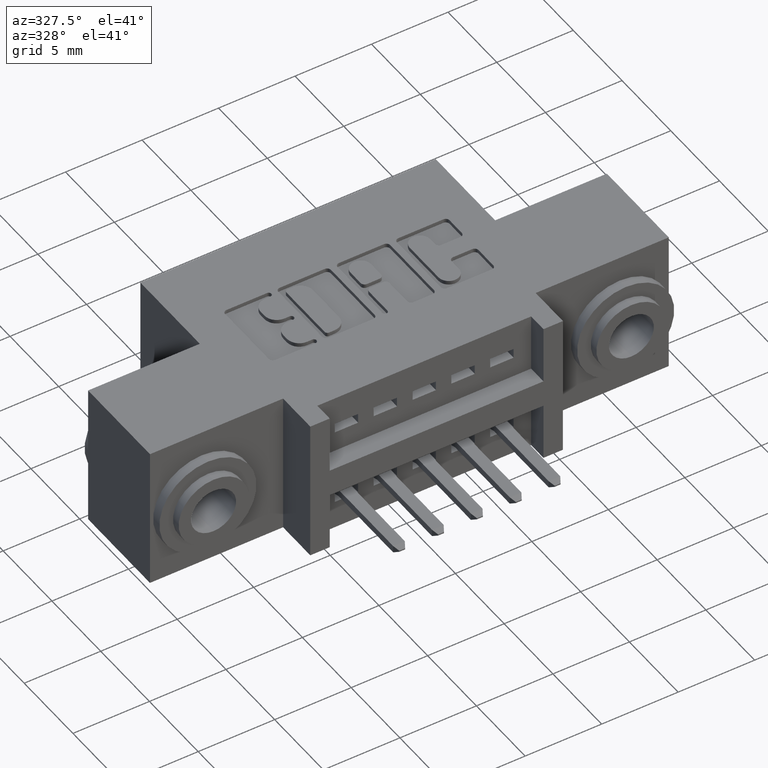
[diagram: clean part render]
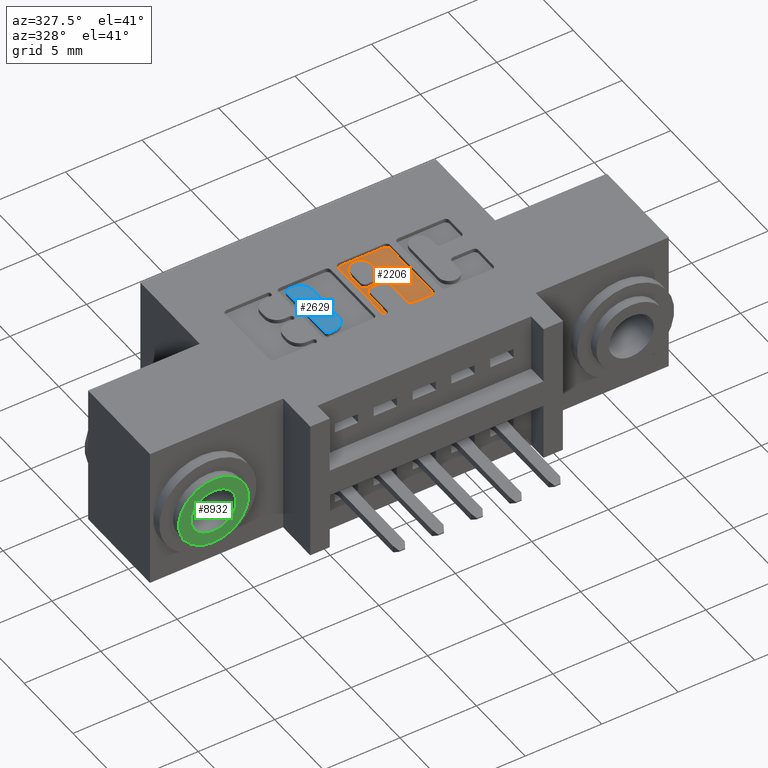
[diagram: same view with three faces highlighted in distinct colors, each labeled with its STEP entity id]
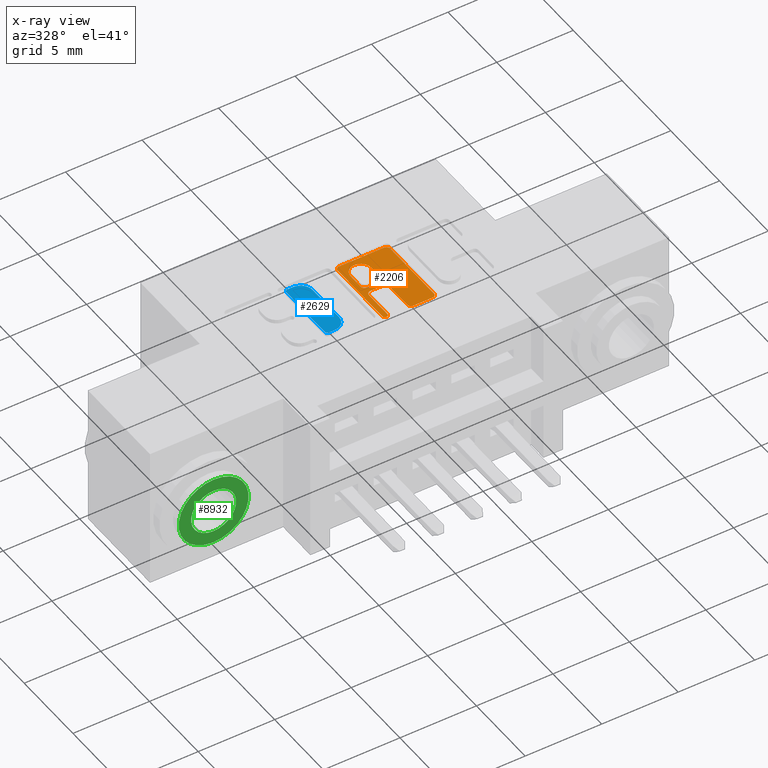
[diagram: x-ray of the same camera — body ghosted, the three highlighted faces saturated]
A machine part, auxiliary view with three faces highlighted in distinct colors.
The next image is the same camera in x-ray (body ghosted, the three faces saturated) — at least one of them is partly hidden behind the body in this view.
Their STEP definitions:

[orange] entity #2206 — the highlighted planar face has unit normal (0, 0, 1).
#54 = VERTEX_POINT ( 'NONE', #7358 ) ;
#79 = CARTESIAN_POINT ( 'NONE',  ( 0.8017292900370103200, 0.2268432979619840200, -0.01000000000000000000 ) ) ;
#188 = VERTEX_POINT ( 'NONE', #8241 ) ;
#221 = DIRECTION ( 'NONE',  ( -0.0000000000000000000, 0.0000000000000000000, 1.000000000000000000 ) ) ;
#294 = ORIENTED_EDGE ( 'NONE', *, *, #7517, .F. ) ;
#339 = AXIS2_PLACEMENT_3D ( 'NONE', #410, #7967, #8633 ) ;
#410 = CARTESIAN_POINT ( 'NONE',  ( 0.6996463199174500800, 0.3416866393464881300, -0.01000000000000000000 ) ) ;
#426 = DIRECTION ( 'NONE',  ( -0.0000000000000000000, 0.0000000000000000000, 1.000000000000000000 ) ) ;
#532 = DIRECTION ( 'NONE',  ( -1.000000000000000000, -4.153954829891640800E-015, 0.0000000000000000000 ) ) ;
#572 = CARTESIAN_POINT ( 'NONE',  ( 0.6898306497136467200, 0.0000000000000000000, -0.01000000000000000000 ) ) ;
#600 = CARTESIAN_POINT ( 'NONE',  ( -1.378577015171062900E-015, 0.3318709691426818300, -0.01000000000000000000 ) ) ;
#611 = EDGE_CURVE ( 'NONE', #188, #9408, #5250, .T. ) ;
#701 = CARTESIAN_POINT ( 'NONE',  ( 0.6829596805709867700, 0.2337142671046473500, -0.01000000000000000000 ) ) ;
#727 = DIRECTION ( 'NONE',  ( -0.0000000000000000000, 0.0000000000000000000, 1.000000000000000000 ) ) ;
#729 = EDGE_CURVE ( 'NONE', #9633, #3139, #8515, .T. ) ;
#811 = VERTEX_POINT ( 'NONE', #79 ) ;
#820 = VERTEX_POINT ( 'NONE', #3150 ) ;
#885 = CIRCLE ( 'NONE', #2667, 0.009815670203795690700 ) ;
#891 = CARTESIAN_POINT ( 'NONE',  ( 0.7521601555077878100, 0.2366589681657872400, -0.01000000000000000000 ) ) ;
#986 = CARTESIAN_POINT ( 'NONE',  ( 0.8115449602408065800, 0.2366589681657802800, -0.01000000000000000000 ) ) ;
#1049 = EDGE_LOOP ( 'NONE', ( #5435, #4120, #294, #5138, #1840, #2706, #7640, #4723, #2866, #4612, #3831, #6120, #7530, #2676 ) ) ;
#1295 = CIRCLE ( 'NONE', #1600, 0.009815670203796920600 ) ;
#1346 = ORIENTED_EDGE ( 'NONE', *, *, #6535, .F. ) ;
#1479 = EDGE_CURVE ( 'NONE', #5377, #8797, #885, .T. ) ;
#1518 = CARTESIAN_POINT ( 'NONE',  ( 0.6859043816321273000, 0.4133410318342095000, -0.01000000000000000000 ) ) ;
#1600 = AXIS2_PLACEMENT_3D ( 'NONE', #2447, #4638, #3823 ) ;
#1621 = CARTESIAN_POINT ( 'NONE',  ( 0.6760887114283307100, 0.2337142671046473500, -0.01000000000000000000 ) ) ;
#1695 = VERTEX_POINT ( 'NONE', #2271 ) ;
#1738 = VECTOR ( 'NONE', #4348, 39.37007874015748100 ) ;
#1806 = DIRECTION ( 'NONE',  ( -0.0000000000000000000, 0.0000000000000000000, 1.000000000000000000 ) ) ;
#1830 = CARTESIAN_POINT ( 'NONE',  ( 0.0000000000000000000, 0.4231567020380060400, -0.01000000000000000000 ) ) ;
#1840 = ORIENTED_EDGE ( 'NONE', *, *, #7257, .F. ) ;
#1869 = DIRECTION ( 'NONE',  ( 0.0000000000000000000, -1.000000000000000000, 0.0000000000000000000 ) ) ;
#1891 = VECTOR ( 'NONE', #532, 39.37007874015748100 ) ;
#1908 = CIRCLE ( 'NONE', #8511, 0.02625691779516779700 ) ;
#2049 = AXIS2_PLACEMENT_3D ( 'NONE', #701, #6654, #4389 ) ;
#2093 = ORIENTED_EDGE ( 'NONE', *, *, #4588, .T. ) ;
#2122 = LINE ( 'NONE', #600, #1891 ) ;
#2176 = CARTESIAN_POINT ( 'NONE',  ( 0.7521601555077854800, 0.2268432979619840200, -0.01000000000000000000 ) ) ;
#2197 = VERTEX_POINT ( 'NONE', #2176 ) ;
#2206 = ADVANCED_FACE ( 'NONE', ( #5647, #5072 ), #8058, .T. ) ;
#2270 = DIRECTION ( 'NONE',  ( 1.000000000000000000, 0.0000000000000000000, 0.0000000000000000000 ) ) ;
#2271 = CARTESIAN_POINT ( 'NONE',  ( 0.6996463199174500800, 0.3318709691426847700, -0.01000000000000000000 ) ) ;
#2379 = CARTESIAN_POINT ( 'NONE',  ( 0.6760887114283307100, 0.0000000000000000000, -0.01000000000000000000 ) ) ;
#2447 = CARTESIAN_POINT ( 'NONE',  ( 0.7325288151001876400, 0.3083133606535521900, -0.01000000000000000000 ) ) ;
#2492 = DIRECTION ( 'NONE',  ( 0.0000000000000000000, -1.000000000000000000, 0.0000000000000000000 ) ) ;
#2667 = AXIS2_PLACEMENT_3D ( 'NONE', #4760, #1806, #7174 ) ;
#2676 = ORIENTED_EDGE ( 'NONE', *, *, #1479, .T. ) ;
#2706 = ORIENTED_EDGE ( 'NONE', *, *, #729, .F. ) ;
#2709 = CIRCLE ( 'NONE', #2049, 0.006870969142657995000 ) ;
#2729 = VERTEX_POINT ( 'NONE', #8960 ) ;
#2787 = LINE ( 'NONE', #3633, #1738 ) ;
#2796 = CARTESIAN_POINT ( 'NONE',  ( 0.6996463199174500800, 0.3181290308573480100, -0.01000000000000000000 ) ) ;
#2815 = DIRECTION ( 'NONE',  ( 0.0000000000000000000, 1.000000000000000000, -0.0000000000000000000 ) ) ;
#2866 = ORIENTED_EDGE ( 'NONE', *, *, #4436, .F. ) ;
#2914 = AXIS2_PLACEMENT_3D ( 'NONE', #7857, #426, #5616 ) ;
#2917 = CARTESIAN_POINT ( 'NONE',  ( 0.0000000000000000000, 0.0000000000000000000, -0.01000000000000000000 ) ) ;
#2963 = EDGE_CURVE ( 'NONE', #5377, #6946, #9459, .T. ) ;
#2966 = VERTEX_POINT ( 'NONE', #1621 ) ;
#3025 = CIRCLE ( 'NONE', #5868, 0.009815670203796511200 ) ;
#3094 = DIRECTION ( 'NONE',  ( 1.000000000000000000, 0.0000000000000000000, 0.0000000000000000000 ) ) ;
#3139 = VERTEX_POINT ( 'NONE', #4966 ) ;
#3150 = CARTESIAN_POINT ( 'NONE',  ( 0.7325288151001879700, 0.3181290308573491700, -0.01000000000000000000 ) ) ;
#3312 = EDGE_CURVE ( 'NONE', #811, #2197, #5277, .T. ) ;
#3417 = LINE ( 'NONE', #2379, #5722 ) ;
#3602 = ORIENTED_EDGE ( 'NONE', *, *, #5633, .T. ) ;
#3633 = CARTESIAN_POINT ( 'NONE',  ( -1.123269580619666900E-014, 0.3181290308573233000, -0.01000000000000000000 ) ) ;
#3760 = VERTEX_POINT ( 'NONE', #6062 ) ;
#3820 = DIRECTION ( 'NONE',  ( 1.000000000000000000, 0.0000000000000000000, 0.0000000000000000000 ) ) ;
#3823 = DIRECTION ( 'NONE',  ( 1.000000000000000000, 0.0000000000000000000, 0.0000000000000000000 ) ) ;
#3831 = ORIENTED_EDGE ( 'NONE', *, *, #3312, .F. ) ;
#3935 = VECTOR ( 'NONE', #6067, 39.37007874015748100 ) ;
#3979 = CIRCLE ( 'NONE', #7625, 0.009815670203803340800 ) ;
#4005 = CARTESIAN_POINT ( 'NONE',  ( 0.8017292900370137600, 0.4231567020380060400, -0.01000000000000000000 ) ) ;
#4060 = LINE ( 'NONE', #1830, #4163 ) ;
#4120 = ORIENTED_EDGE ( 'NONE', *, *, #6773, .T. ) ;
#4163 = VECTOR ( 'NONE', #6988, 39.37007874015748100 ) ;
#4214 = AXIS2_PLACEMENT_3D ( 'NONE', #4418, #8189, #2270 ) ;
#4341 = EDGE_CURVE ( 'NONE', #188, #1695, #4699, .T. ) ;
#4348 = DIRECTION ( 'NONE',  ( -1.000000000000000000, -3.530861605407645300E-014, 0.0000000000000000000 ) ) ;
#4389 = DIRECTION ( 'NONE',  ( 1.000000000000000000, 0.0000000000000000000, 0.0000000000000000000 ) ) ;
#4405 = CIRCLE ( 'NONE', #2914, 0.009815670203796374200 ) ;
#4418 = CARTESIAN_POINT ( 'NONE',  ( 0.8017292900370103200, 0.2366589681657802800, -0.01000000000000000000 ) ) ;
#4436 = EDGE_CURVE ( 'NONE', #6322, #8708, #9372, .T. ) ;
#4469 = VECTOR ( 'NONE', #6534, 39.37007874015748100 ) ;
#4572 = EDGE_CURVE ( 'NONE', #8497, #8797, #4060, .T. ) ;
#4577 = VERTEX_POINT ( 'NONE', #9244 ) ;
#4588 = EDGE_CURVE ( 'NONE', #3760, #4577, #5431, .T. ) ;
#4612 = ORIENTED_EDGE ( 'NONE', *, *, #8691, .T. ) ;
#4638 = DIRECTION ( 'NONE',  ( -0.0000000000000000000, 0.0000000000000000000, 1.000000000000000000 ) ) ;
#4699 = CIRCLE ( 'NONE', #339, 0.009815670203803340800 ) ;
#4723 = ORIENTED_EDGE ( 'NONE', *, *, #8630, .F. ) ;
#4760 = CARTESIAN_POINT ( 'NONE',  ( 0.8017292900370114300, 0.4133410318342097800, -0.01000000000000000000 ) ) ;
#4889 = LINE ( 'NONE', #7999, #8236 ) ;
#4966 = CARTESIAN_POINT ( 'NONE',  ( 0.6898306497136467200, 0.3083133606535449800, -0.01000000000000000000 ) ) ;
#5041 = DIRECTION ( 'NONE',  ( -0.0000000000000000000, 0.0000000000000000000, 1.000000000000000000 ) ) ;
#5072 = FACE_OUTER_BOUND ( 'NONE', #1049, .T. ) ;
#5138 = ORIENTED_EDGE ( 'NONE', *, *, #8176, .T. ) ;
#5233 = VERTEX_POINT ( 'NONE', #8085 ) ;
#5250 = LINE ( 'NONE', #572, #7809 ) ;
#5277 = LINE ( 'NONE', #8104, #4469 ) ;
#5377 = VERTEX_POINT ( 'NONE', #8261 ) ;
#5431 = LINE ( 'NONE', #6294, #7876 ) ;
#5435 = ORIENTED_EDGE ( 'NONE', *, *, #4572, .F. ) ;
#5616 = DIRECTION ( 'NONE',  ( 1.000000000000000000, 0.0000000000000000000, 0.0000000000000000000 ) ) ;
#5633 = EDGE_CURVE ( 'NONE', #54, #1695, #2122, .T. ) ;
#5637 = CARTESIAN_POINT ( 'NONE',  ( 0.7423444853039845600, 0.0000000000000000000, -0.01000000000000000000 ) ) ;
#5647 = FACE_BOUND ( 'NONE', #7435, .T. ) ;
#5660 = DIRECTION ( 'NONE',  ( 0.0000000000000000000, -1.000000000000000000, 0.0000000000000000000 ) ) ;
#5722 = VECTOR ( 'NONE', #7474, 39.37007874015748100 ) ;
#5747 = VECTOR ( 'NONE', #2492, 39.37007874015748100 ) ;
#5776 = DIRECTION ( 'NONE',  ( 1.000000000000000000, 0.0000000000000000000, 0.0000000000000000000 ) ) ;
#5847 = CARTESIAN_POINT ( 'NONE',  ( 0.6996463199174500800, 0.3083133606535449800, -0.01000000000000000000 ) ) ;
#5868 = AXIS2_PLACEMENT_3D ( 'NONE', #1518, #727, #3820 ) ;
#6062 = CARTESIAN_POINT ( 'NONE',  ( 0.7423444853039820000, 0.3826670498449315500, -0.01000000000000000000 ) ) ;
#6067 = DIRECTION ( 'NONE',  ( 0.0000000000000000000, 1.000000000000000000, -0.0000000000000000000 ) ) ;
#6120 = ORIENTED_EDGE ( 'NONE', *, *, #8096, .T. ) ;
#6294 = CARTESIAN_POINT ( 'NONE',  ( 0.7423444853039820000, 0.0000000000000000000, -0.01000000000000000000 ) ) ;
#6322 = VERTEX_POINT ( 'NONE', #6990 ) ;
#6500 = AXIS2_PLACEMENT_3D ( 'NONE', #2917, #8803, #8092 ) ;
#6513 = CARTESIAN_POINT ( 'NONE',  ( 0.6859043816321273000, 0.4231567020380060400, -0.01000000000000000000 ) ) ;
#6534 = DIRECTION ( 'NONE',  ( -1.000000000000000000, 0.0000000000000000000, 0.0000000000000000000 ) ) ;
#6535 = EDGE_CURVE ( 'NONE', #54, #4577, #4405, .T. ) ;
#6610 = AXIS2_PLACEMENT_3D ( 'NONE', #5847, #8093, #8171 ) ;
#6652 = EDGE_CURVE ( 'NONE', #820, #9633, #2787, .T. ) ;
#6654 = DIRECTION ( 'NONE',  ( -0.0000000000000000000, 0.0000000000000000000, 1.000000000000000000 ) ) ;
#6773 = EDGE_CURVE ( 'NONE', #8497, #5233, #3025, .T. ) ;
#6840 = ORIENTED_EDGE ( 'NONE', *, *, #611, .T. ) ;
#6889 = CIRCLE ( 'NONE', #4214, 0.009815670203796237100 ) ;
#6921 = CARTESIAN_POINT ( 'NONE',  ( 0.8115449602408065800, 0.0000000000000000000, -0.01000000000000000000 ) ) ;
#6946 = VERTEX_POINT ( 'NONE', #986 ) ;
#6988 = DIRECTION ( 'NONE',  ( 1.000000000000000000, 0.0000000000000000000, 0.0000000000000000000 ) ) ;
#6990 = CARTESIAN_POINT ( 'NONE',  ( 0.7423444853039845600, 0.2366589681657872400, -0.01000000000000000000 ) ) ;
#7174 = DIRECTION ( 'NONE',  ( 1.000000000000000000, 0.0000000000000000000, 0.0000000000000000000 ) ) ;
#7257 = EDGE_CURVE ( 'NONE', #3139, #2729, #4889, .T. ) ;
#7358 = CARTESIAN_POINT ( 'NONE',  ( 0.7325288151001856400, 0.3318709691426849400, -0.01000000000000000000 ) ) ;
#7435 = EDGE_LOOP ( 'NONE', ( #9360, #2093, #1346, #3602, #8127, #6840 ) ) ;
#7474 = DIRECTION ( 'NONE',  ( 0.0000000000000000000, 1.000000000000000000, -0.0000000000000000000 ) ) ;
#7517 = EDGE_CURVE ( 'NONE', #2966, #5233, #3417, .T. ) ;
#7530 = ORIENTED_EDGE ( 'NONE', *, *, #2963, .F. ) ;
#7625 = AXIS2_PLACEMENT_3D ( 'NONE', #891, #221, #3094 ) ;
#7640 = ORIENTED_EDGE ( 'NONE', *, *, #6652, .F. ) ;
#7689 = CARTESIAN_POINT ( 'NONE',  ( 0.6898306497136467200, 0.3826670624473473300, -0.01000000000000000000 ) ) ;
#7809 = VECTOR ( 'NONE', #2815, 39.37007874015748100 ) ;
#7857 = CARTESIAN_POINT ( 'NONE',  ( 0.7325288151001856400, 0.3416866393464813600, -0.01000000000000000000 ) ) ;
#7876 = VECTOR ( 'NONE', #1869, 39.37007874015748100 ) ;
#7967 = DIRECTION ( 'NONE',  ( -0.0000000000000000000, 0.0000000000000000000, 1.000000000000000000 ) ) ;
#7999 = CARTESIAN_POINT ( 'NONE',  ( 0.6898306497136467200, 0.0000000000000000000, -0.01000000000000000000 ) ) ;
#8045 = EDGE_CURVE ( 'NONE', #3760, #9408, #1908, .T. ) ;
#8058 = PLANE ( 'NONE',  #6500 ) ;
#8085 = CARTESIAN_POINT ( 'NONE',  ( 0.6760887114283307100, 0.4133410318342095000, -0.01000000000000000000 ) ) ;
#8092 = DIRECTION ( 'NONE',  ( 1.000000000000000000, 0.0000000000000000000, 0.0000000000000000000 ) ) ;
#8093 = DIRECTION ( 'NONE',  ( -0.0000000000000000000, 0.0000000000000000000, 1.000000000000000000 ) ) ;
#8096 = EDGE_CURVE ( 'NONE', #811, #6946, #6889, .T. ) ;
#8104 = CARTESIAN_POINT ( 'NONE',  ( 0.0000000000000000000, 0.2268432979619840200, -0.01000000000000000000 ) ) ;
#8127 = ORIENTED_EDGE ( 'NONE', *, *, #4341, .F. ) ;
#8171 = DIRECTION ( 'NONE',  ( 1.000000000000000000, 0.0000000000000000000, 0.0000000000000000000 ) ) ;
#8176 = EDGE_CURVE ( 'NONE', #2966, #2729, #2709, .T. ) ;
#8189 = DIRECTION ( 'NONE',  ( -0.0000000000000000000, 0.0000000000000000000, 1.000000000000000000 ) ) ;
#8236 = VECTOR ( 'NONE', #5660, 39.37007874015748100 ) ;
#8241 = CARTESIAN_POINT ( 'NONE',  ( 0.6898306497136467200, 0.3416866393464881300, -0.01000000000000000000 ) ) ;
#8261 = CARTESIAN_POINT ( 'NONE',  ( 0.8115449602408065800, 0.4133410318342003500, -0.01000000000000000000 ) ) ;
#8497 = VERTEX_POINT ( 'NONE', #6513 ) ;
#8511 = AXIS2_PLACEMENT_3D ( 'NONE', #9444, #5041, #5776 ) ;
#8515 = CIRCLE ( 'NONE', #6610, 0.009815670203803203800 ) ;
#8630 = EDGE_CURVE ( 'NONE', #8708, #820, #1295, .T. ) ;
#8633 = DIRECTION ( 'NONE',  ( 1.000000000000000000, 0.0000000000000000000, 0.0000000000000000000 ) ) ;
#8691 = EDGE_CURVE ( 'NONE', #6322, #2197, #3979, .T. ) ;
#8708 = VERTEX_POINT ( 'NONE', #9110 ) ;
#8797 = VERTEX_POINT ( 'NONE', #4005 ) ;
#8803 = DIRECTION ( 'NONE',  ( -0.0000000000000000000, 0.0000000000000000000, 1.000000000000000000 ) ) ;
#8960 = CARTESIAN_POINT ( 'NONE',  ( 0.6898306497136467200, 0.2337142671046473500, -0.01000000000000000000 ) ) ;
#9110 = CARTESIAN_POINT ( 'NONE',  ( 0.7423444853039845600, 0.3083133606535428700, -0.01000000000000000000 ) ) ;
#9244 = CARTESIAN_POINT ( 'NONE',  ( 0.7423444853039820000, 0.3416866393464813600, -0.01000000000000000000 ) ) ;
#9360 = ORIENTED_EDGE ( 'NONE', *, *, #8045, .F. ) ;
#9372 = LINE ( 'NONE', #5637, #3935 ) ;
#9408 = VERTEX_POINT ( 'NONE', #7689 ) ;
#9444 = CARTESIAN_POINT ( 'NONE',  ( 0.7160875675088115300, 0.3826670498449315500, -0.01000000000000000000 ) ) ;
#9459 = LINE ( 'NONE', #6921, #5747 ) ;
#9633 = VERTEX_POINT ( 'NONE', #2796 ) ;

[blue] entity #2629 — the highlighted planar face has unit normal (0, 0, -1).
#11 = CARTESIAN_POINT ( 'NONE',  ( 0.5897108136348435700, 0.2719953808994839400, 0.0000000000000000000 ) ) ;
#381 = LINE ( 'NONE', #4342, #8183 ) ;
#447 = CARTESIAN_POINT ( 'NONE',  ( 0.5371969780444986200, 0.4025437946100561800, 0.0000000000000000000 ) ) ;
#503 = CARTESIAN_POINT ( 'NONE',  ( 0.5371969780444986200, 0.2474562053899769000, 0.0000000000000000000 ) ) ;
#582 = CARTESIAN_POINT ( 'NONE',  ( 0.5440679471871618900, 0.2474562053899769000, 0.0000000000000000000 ) ) ;
#722 = DIRECTION ( 'NONE',  ( 1.000000000000000000, 0.0000000000000000000, 0.0000000000000000000 ) ) ;
#750 = EDGE_CURVE ( 'NONE', #8297, #4600, #5820, .T. ) ;
#804 = CARTESIAN_POINT ( 'NONE',  ( 0.5583006689826732800, 0.2719953808994839400, 0.0000000000000000000 ) ) ;
#1190 = VERTEX_POINT ( 'NONE', #6523 ) ;
#1314 = CARTESIAN_POINT ( 'NONE',  ( 0.0000000000000000000, 0.2405852362473136800, 0.0000000000000000000 ) ) ;
#1515 = ORIENTED_EDGE ( 'NONE', *, *, #2590, .F. ) ;
#1534 = AXIS2_PLACEMENT_3D ( 'NONE', #804, #8964, #2978 ) ;
#1657 = EDGE_CURVE ( 'NONE', #8265, #7597, #5307, .T. ) ;
#1809 = VECTOR ( 'NONE', #2822, 39.37007874015748100 ) ;
#2070 = FACE_OUTER_BOUND ( 'NONE', #3787, .T. ) ;
#2099 = VERTEX_POINT ( 'NONE', #7349 ) ;
#2166 = CARTESIAN_POINT ( 'NONE',  ( 0.0000000000000000000, 0.5999999999999999800, 0.0000000000000000000 ) ) ;
#2225 = CARTESIAN_POINT ( 'NONE',  ( -0.0000000000000000000, 0.4094147637527239000, 0.0000000000000000000 ) ) ;
#2366 = CARTESIAN_POINT ( 'NONE',  ( 0.5583006689826732800, 0.2405852362473136800, 0.0000000000000000000 ) ) ;
#2590 = EDGE_CURVE ( 'NONE', #8265, #2099, #6927, .T. ) ;
#2618 = LINE ( 'NONE', #7298, #2731 ) ;
#2629 = ADVANCED_FACE ( 'NONE', ( #2070 ), #8048, .F. ) ;
#2664 = ORIENTED_EDGE ( 'NONE', *, *, #7815, .T. ) ;
#2731 = VECTOR ( 'NONE', #4354, 39.37007874015748100 ) ;
#2822 = DIRECTION ( 'NONE',  ( 1.000000000000000000, 0.0000000000000000000, 0.0000000000000000000 ) ) ;
#2978 = DIRECTION ( 'NONE',  ( 1.000000000000000000, 0.0000000000000000000, 0.0000000000000000000 ) ) ;
#2988 = DIRECTION ( 'NONE',  ( -0.0000000000000000000, 0.0000000000000000000, 1.000000000000000000 ) ) ;
#3347 = EDGE_CURVE ( 'NONE', #1190, #4600, #8192, .T. ) ;
#3586 = EDGE_CURVE ( 'NONE', #4374, #7237, #381, .T. ) ;
#3717 = EDGE_CURVE ( 'NONE', #8297, #7597, #2618, .T. ) ;
#3785 = DIRECTION ( 'NONE',  ( -0.0000000000000000000, 0.0000000000000000000, 1.000000000000000000 ) ) ;
#3787 = EDGE_LOOP ( 'NONE', ( #2664, #5390, #4550, #1515, #4150, #4367, #5885, #4581 ) ) ;
#4150 = ORIENTED_EDGE ( 'NONE', *, *, #1657, .T. ) ;
#4342 = CARTESIAN_POINT ( 'NONE',  ( 0.5371969780444986200, 0.0000000000000000000, 0.0000000000000000000 ) ) ;
#4354 = DIRECTION ( 'NONE',  ( 0.0000000000000000000, -1.000000000000000000, 0.0000000000000000000 ) ) ;
#4367 = ORIENTED_EDGE ( 'NONE', *, *, #3717, .F. ) ;
#4374 = VERTEX_POINT ( 'NONE', #503 ) ;
#4550 = ORIENTED_EDGE ( 'NONE', *, *, #5787, .T. ) ;
#4581 = ORIENTED_EDGE ( 'NONE', *, *, #3347, .F. ) ;
#4600 = VERTEX_POINT ( 'NONE', #7844 ) ;
#5307 = CIRCLE ( 'NONE', #1534, 0.03141014465217023500 ) ;
#5373 = CIRCLE ( 'NONE', #7995, 0.006870969142667761500 ) ;
#5390 = ORIENTED_EDGE ( 'NONE', *, *, #3586, .F. ) ;
#5588 = AXIS2_PLACEMENT_3D ( 'NONE', #2166, #5774, #9409 ) ;
#5774 = DIRECTION ( 'NONE',  ( 0.0000000000000000000, 0.0000000000000000000, -1.000000000000000000 ) ) ;
#5787 = EDGE_CURVE ( 'NONE', #4374, #2099, #6281, .T. ) ;
#5820 = CIRCLE ( 'NONE', #6378, 0.03141014465217194900 ) ;
#5881 = DIRECTION ( 'NONE',  ( 0.0000000000000000000, 1.000000000000000000, -0.0000000000000000000 ) ) ;
#5885 = ORIENTED_EDGE ( 'NONE', *, *, #750, .T. ) ;
#6281 = CIRCLE ( 'NONE', #8625, 0.006870969142663253800 ) ;
#6328 = CARTESIAN_POINT ( 'NONE',  ( 0.5440679471871663300, 0.4025437946100561800, 0.0000000000000000000 ) ) ;
#6378 = AXIS2_PLACEMENT_3D ( 'NONE', #9552, #2988, #9653 ) ;
#6523 = CARTESIAN_POINT ( 'NONE',  ( 0.5440679471871663300, 0.4094147637527239000, 0.0000000000000000000 ) ) ;
#6927 = LINE ( 'NONE', #1314, #7049 ) ;
#7049 = VECTOR ( 'NONE', #8087, 39.37007874015748100 ) ;
#7237 = VERTEX_POINT ( 'NONE', #447 ) ;
#7298 = CARTESIAN_POINT ( 'NONE',  ( 0.5897108136348435700, 0.0000000000000000000, 0.0000000000000000000 ) ) ;
#7349 = CARTESIAN_POINT ( 'NONE',  ( 0.5440679471871618900, 0.2405852362473136800, 0.0000000000000000000 ) ) ;
#7490 = CARTESIAN_POINT ( 'NONE',  ( 0.5897108136348435700, 0.3780046191005520000, 0.0000000000000000000 ) ) ;
#7597 = VERTEX_POINT ( 'NONE', #11 ) ;
#7815 = EDGE_CURVE ( 'NONE', #1190, #7237, #5373, .T. ) ;
#7844 = CARTESIAN_POINT ( 'NONE',  ( 0.5583006689826778300, 0.4094147637527239000, 0.0000000000000000000 ) ) ;
#7995 = AXIS2_PLACEMENT_3D ( 'NONE', #6328, #9351, #9380 ) ;
#8048 = PLANE ( 'NONE',  #5588 ) ;
#8087 = DIRECTION ( 'NONE',  ( -1.000000000000000000, 0.0000000000000000000, 0.0000000000000000000 ) ) ;
#8183 = VECTOR ( 'NONE', #5881, 39.37007874015748100 ) ;
#8192 = LINE ( 'NONE', #2225, #1809 ) ;
#8265 = VERTEX_POINT ( 'NONE', #2366 ) ;
#8297 = VERTEX_POINT ( 'NONE', #7490 ) ;
#8625 = AXIS2_PLACEMENT_3D ( 'NONE', #582, #3785, #722 ) ;
#8964 = DIRECTION ( 'NONE',  ( -0.0000000000000000000, 0.0000000000000000000, 1.000000000000000000 ) ) ;
#9351 = DIRECTION ( 'NONE',  ( -0.0000000000000000000, 0.0000000000000000000, 1.000000000000000000 ) ) ;
#9380 = DIRECTION ( 'NONE',  ( 1.000000000000000000, 0.0000000000000000000, 0.0000000000000000000 ) ) ;
#9409 = DIRECTION ( 'NONE',  ( -1.000000000000000000, 0.0000000000000000000, -0.0000000000000000000 ) ) ;
#9552 = CARTESIAN_POINT ( 'NONE',  ( 0.5583006689826716100, 0.3780046191005520000, 0.0000000000000000000 ) ) ;
#9653 = DIRECTION ( 'NONE',  ( 1.000000000000000000, 0.0000000000000000000, 0.0000000000000000000 ) ) ;

[green] entity #8932 — the highlighted planar face has unit normal (-0, -1, 0).
#30 = CARTESIAN_POINT ( 'NONE',  ( 0.0000000000000000000, 0.3279999999999999000, 0.0000000000000000000 ) ) ;
#106 = FACE_BOUND ( 'NONE', #310, .T. ) ;
#310 = EDGE_LOOP ( 'NONE', ( #3479, #2020 ) ) ;
#318 = CARTESIAN_POINT ( 'NONE',  ( -3.067874872647754800E-035, 0.3279999999999999000, 0.08999999999999999700 ) ) ;
#472 = CARTESIAN_POINT ( 'NONE',  ( 0.0000000000000000000, 0.3279999999999999000, 0.0000000000000000000 ) ) ;
#928 = CIRCLE ( 'NONE', #2350, 0.05800000000000000300 ) ;
#1617 = CARTESIAN_POINT ( 'NONE',  ( 7.102951435054640600E-018, 0.3279999999999999000, -0.05800000000000000300 ) ) ;
#1686 = CARTESIAN_POINT ( 'NONE',  ( 1.102182119232617900E-017, 0.3279999999999999000, -0.08999999999999999700 ) ) ;
#2020 = ORIENTED_EDGE ( 'NONE', *, *, #3756, .F. ) ;
#2144 = DIRECTION ( 'NONE',  ( -2.465190328815661900E-032, 1.000000000000000000, 0.0000000000000000000 ) ) ;
#2282 = EDGE_CURVE ( 'NONE', #8680, #8826, #2534, .T. ) ;
#2350 = AXIS2_PLACEMENT_3D ( 'NONE', #5073, #2144, #6493 ) ;
#2504 = VERTEX_POINT ( 'NONE', #3493 ) ;
#2534 = CIRCLE ( 'NONE', #3530, 0.08999999999999999700 ) ;
#3179 = FACE_OUTER_BOUND ( 'NONE', #6365, .T. ) ;
#3271 = CIRCLE ( 'NONE', #5567, 0.08999999999999999700 ) ;
#3479 = ORIENTED_EDGE ( 'NONE', *, *, #5570, .F. ) ;
#3493 = CARTESIAN_POINT ( 'NONE',  ( -1.977074917928553200E-035, 0.3279999999999999000, 0.05800000000000000300 ) ) ;
#3506 = DIRECTION ( 'NONE',  ( -2.465190328815661900E-032, 1.000000000000000000, -7.095886083921900600E-051 ) ) ;
#3530 = AXIS2_PLACEMENT_3D ( 'NONE', #7570, #7600, #6729 ) ;
#3739 = DIRECTION ( 'NONE',  ( -2.465190328815661900E-032, 1.000000000000000000, 0.0000000000000000000 ) ) ;
#3756 = EDGE_CURVE ( 'NONE', #9357, #2504, #7842, .T. ) ;
#4017 = ORIENTED_EDGE ( 'NONE', *, *, #2282, .T. ) ;
#4244 = DIRECTION ( 'NONE',  ( -3.408749858497505200E-034, 7.095886083921892200E-051, 1.000000000000000000 ) ) ;
#4687 = DIRECTION ( 'NONE',  ( -3.408749858497505600E-034, 0.0000000000000000000, 1.000000000000000000 ) ) ;
#4715 = CARTESIAN_POINT ( 'NONE',  ( 0.0000000000000000000, 0.3279999999999999000, 0.0000000000000000000 ) ) ;
#4963 = PLANE ( 'NONE',  #7709 ) ;
#5073 = CARTESIAN_POINT ( 'NONE',  ( 0.0000000000000000000, 0.3279999999999999000, 0.0000000000000000000 ) ) ;
#5567 = AXIS2_PLACEMENT_3D ( 'NONE', #4715, #7562, #4687 ) ;
#5570 = EDGE_CURVE ( 'NONE', #2504, #9357, #928, .T. ) ;
#5883 = AXIS2_PLACEMENT_3D ( 'NONE', #30, #3739, #5985 ) ;
#5985 = DIRECTION ( 'NONE',  ( -3.408749858497505200E-034, 0.0000000000000000000, 1.000000000000000000 ) ) ;
#6296 = EDGE_CURVE ( 'NONE', #8826, #8680, #3271, .T. ) ;
#6365 = EDGE_LOOP ( 'NONE', ( #9269, #4017 ) ) ;
#6493 = DIRECTION ( 'NONE',  ( -3.408749858497505200E-034, 0.0000000000000000000, 1.000000000000000000 ) ) ;
#6729 = DIRECTION ( 'NONE',  ( -3.408749858497505600E-034, 0.0000000000000000000, 1.000000000000000000 ) ) ;
#7562 = DIRECTION ( 'NONE',  ( -2.465190328815661900E-032, 1.000000000000000000, 0.0000000000000000000 ) ) ;
#7570 = CARTESIAN_POINT ( 'NONE',  ( 0.0000000000000000000, 0.3279999999999999000, 0.0000000000000000000 ) ) ;
#7600 = DIRECTION ( 'NONE',  ( -2.465190328815661900E-032, 1.000000000000000000, 0.0000000000000000000 ) ) ;
#7709 = AXIS2_PLACEMENT_3D ( 'NONE', #472, #3506, #4244 ) ;
#7842 = CIRCLE ( 'NONE', #5883, 0.05800000000000000300 ) ;
#8680 = VERTEX_POINT ( 'NONE', #1686 ) ;
#8826 = VERTEX_POINT ( 'NONE', #318 ) ;
#8932 = ADVANCED_FACE ( 'NONE', ( #106, #3179 ), #4963, .T. ) ;
#9269 = ORIENTED_EDGE ( 'NONE', *, *, #6296, .T. ) ;
#9357 = VERTEX_POINT ( 'NONE', #1617 ) ;